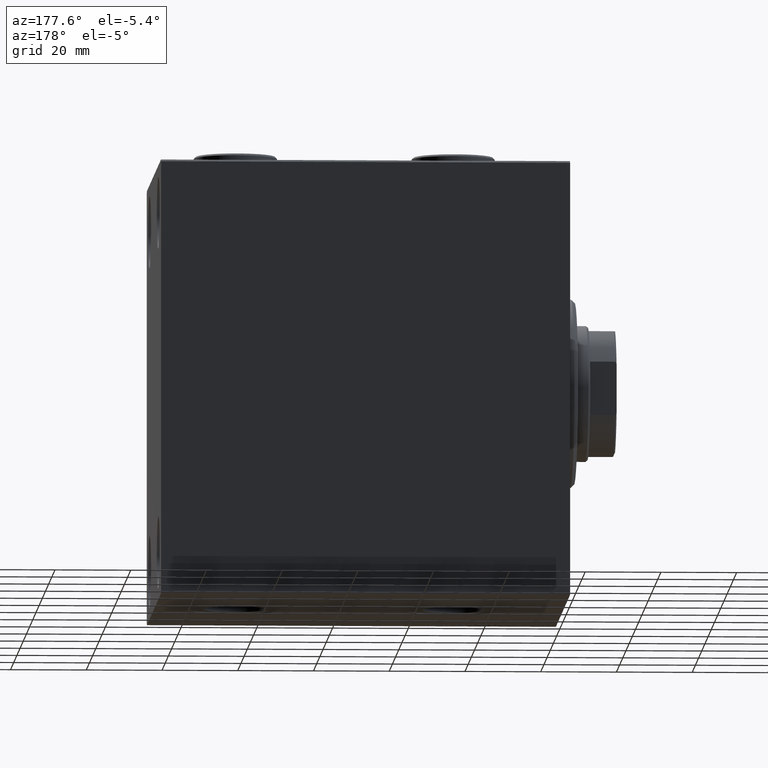
[diagram: clean part render]
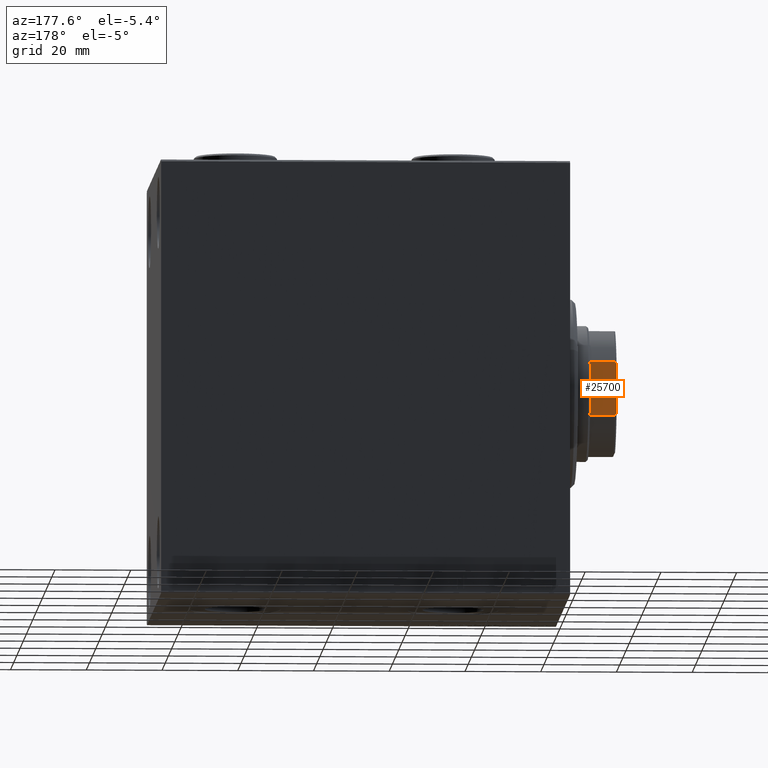
[diagram: same view with one face highlighted and labeled with its STEP entity id]
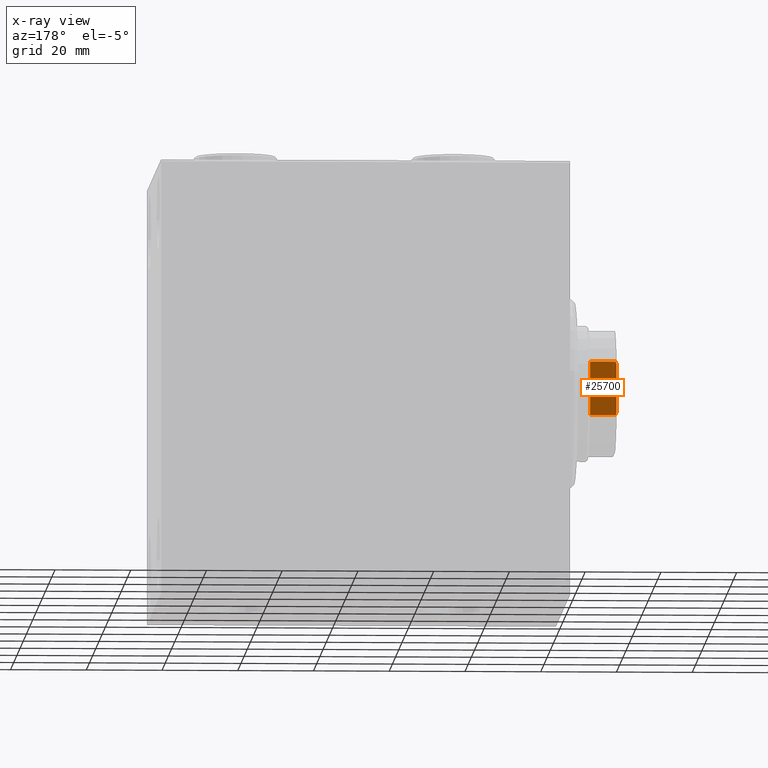
[diagram: x-ray of the same camera — body ghosted, the highlighted face saturated]
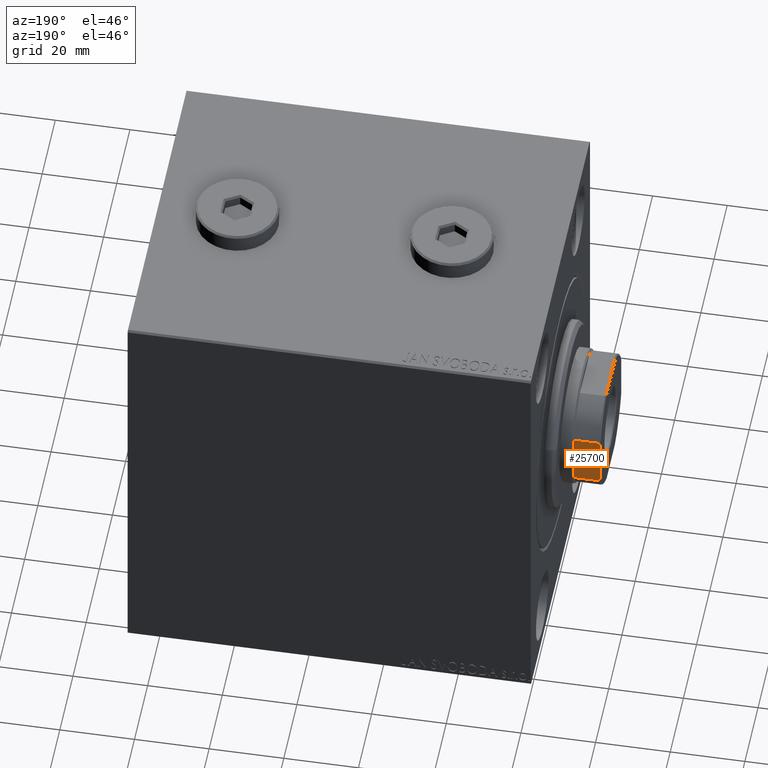
[diagram: same view with one face highlighted and labeled with its STEP entity id]
A machine part, auxiliary view. The second image highlights one B-rep face of the part: STEP entity #25700.
The next image is the same camera in x-ray: the body ghosted, the highlighted face saturated — about 0% of this face is hidden behind the body in this view.
A second angle (auxiliary view) of the same face is appended — the face is thin or edge-on in the first view.
In plain terms, the highlighted planar face has unit normal (0, -1, 0).
Its self-contained STEP definition (entity closure, byte-faithful):
#198 = VERTEX_POINT ( 'NONE', #41382 ) ;
#406 = VERTEX_POINT ( 'NONE', #35464 ) ;
#417 = CARTESIAN_POINT ( 'NONE',  ( -7.088723439378917135, 16.00000000000000000, 97.00000000000002842 ) ) ;
#428 = EDGE_CURVE ( 'NONE', #10973, #8627, #16122, .T. ) ;
#479 = DIRECTION ( 'NONE',  ( 0.000000000000000000, -1.000000000000000000, 0.000000000000000000 ) ) ;
#1130 = CARTESIAN_POINT ( 'NONE',  ( -6.311893535223715546, 16.00000000000000000, 104.0000000000000142 ) ) ;
#1370 = CARTESIAN_POINT ( 'NONE',  ( 7.088723439378914470, 16.00000000000000000, 103.7000000000000313 ) ) ;
#1575 = CARTESIAN_POINT ( 'NONE',  ( -6.572519770966229302, 16.00000000000000000, 103.9043578457852988 ) ) ;
#1952 = EDGE_CURVE ( 'NONE', #198, #8627, #22815, .T. ) ;
#3642 = ORIENTED_EDGE ( 'NONE', *, *, #1952, .T. ) ;
#4144 = CARTESIAN_POINT ( 'NONE',  ( -16.00000000000000000, 16.00000000000000000, 104.0000000000000142 ) ) ;
#4205 = ORIENTED_EDGE ( 'NONE', *, *, #24020, .F. ) ;
#5403 = ORIENTED_EDGE ( 'NONE', *, *, #428, .F. ) ;
#5447 = CARTESIAN_POINT ( 'NONE',  ( -6.311893535223715546, 16.00000000000000000, 104.0000000000000142 ) ) ;
#5471 = CARTESIAN_POINT ( 'NONE',  ( 6.311893535223850549, 16.00000000000000000, 104.0000000000000142 ) ) ;
#5602 = AXIS2_PLACEMENT_3D ( 'NONE', #4144, #479, #24252 ) ;
#5671 = CARTESIAN_POINT ( 'NONE',  ( 7.088723439378916247, 16.00000000000000355, 97.00000000000002842 ) ) ;
#6887 = LINE ( 'NONE', #10537, #31172 ) ;
#7327 = VECTOR ( 'NONE', #9046, 1000.000000000000000 ) ;
#8627 = VERTEX_POINT ( 'NONE', #27269 ) ;
#9046 = DIRECTION ( 'NONE',  ( -0.000000000000000000, -0.000000000000000000, 1.000000000000000000 ) ) ;
#10537 = CARTESIAN_POINT ( 'NONE',  ( -7.088723439378916247, 16.00000000000000000, -0.001000000000001000089 ) ) ;
#10889 = EDGE_CURVE ( 'NONE', #406, #41762, #39834, .T. ) ;
#10973 = VERTEX_POINT ( 'NONE', #5671 ) ;
#11237 = FACE_OUTER_BOUND ( 'NONE', #13077, .T. ) ;
#12311 = CARTESIAN_POINT ( 'NONE',  ( -7.088723439378916247, 16.00000000000000000, 103.6999999999999886 ) ) ;
#13077 = EDGE_LOOP ( 'NONE', ( #4205, #3642, #5403, #43466, #38001, #20495 ) ) ;
#14579 = DIRECTION ( 'NONE',  ( -1.000000000000000000, -0.000000000000000000, -0.000000000000000000 ) ) ;
#16122 = LINE ( 'NONE', #19314, #7327 ) ;
#18555 = VERTEX_POINT ( 'NONE', #417 ) ;
#19314 = CARTESIAN_POINT ( 'NONE',  ( 7.088723439378914470, 16.00000000000000000, -0.001000000000001000089 ) ) ;
#20495 = ORIENTED_EDGE ( 'NONE', *, *, #10889, .T. ) ;
#20807 = DIRECTION ( 'NONE',  ( -0.000000000000000000, -0.000000000000000000, 1.000000000000000000 ) ) ;
#22815 = B_SPLINE_CURVE_WITH_KNOTS ( 'NONE', 3,
 ( #5471, #39795, #29049, #1370 ),
 .UNSPECIFIED., .F., .F.,
 ( 4, 4 ),
 ( 8.673617379884035472E-19, 0.0008327452791757846730 ),
 .UNSPECIFIED. ) ;
#22822 = CARTESIAN_POINT ( 'NONE',  ( -6.831413176973244461, 16.00000000000000000, 103.8042286450461376 ) ) ;
#24020 = EDGE_CURVE ( 'NONE', #198, #41762, #34956, .T. ) ;
#24034 = CARTESIAN_POINT ( 'NONE',  ( -16.00000000000000000, 16.00000000000000000, 97.00000000000000000 ) ) ;
#24252 = DIRECTION ( 'NONE',  ( 0.000000000000000000, -0.000000000000000000, -1.000000000000000000 ) ) ;
#25184 = PLANE ( 'NONE',  #5602 ) ;
#25700 = ADVANCED_FACE ( 'NONE', ( #11237 ), #25184, .F. ) ;
#25805 = EDGE_CURVE ( 'NONE', #18555, #406, #6887, .T. ) ;
#27269 = CARTESIAN_POINT ( 'NONE',  ( 7.088723439378914470, 16.00000000000000000, 103.7000000000000313 ) ) ;
#28079 = CARTESIAN_POINT ( 'NONE',  ( -16.00000000000000000, 16.00000000000000000, 104.0000000000000142 ) ) ;
#28508 = EDGE_CURVE ( 'NONE', #10973, #18555, #31150, .T. ) ;
#29049 = CARTESIAN_POINT ( 'NONE',  ( 6.831413176973289758, 16.00000000000000000, 103.8042286450461660 ) ) ;
#30516 = VECTOR ( 'NONE', #14579, 1000.000000000000000 ) ;
#31150 = LINE ( 'NONE', #24034, #42216 ) ;
#31172 = VECTOR ( 'NONE', #20807, 1000.000000000000000 ) ;
#34956 = LINE ( 'NONE', #28079, #30516 ) ;
#35464 = CARTESIAN_POINT ( 'NONE',  ( -7.088723439378916247, 16.00000000000000000, 103.6999999999999886 ) ) ;
#38001 = ORIENTED_EDGE ( 'NONE', *, *, #25805, .T. ) ;
#39795 = CARTESIAN_POINT ( 'NONE',  ( 6.572519770966314567, 16.00000000000000000, 103.9043578457853130 ) ) ;
#39834 = B_SPLINE_CURVE_WITH_KNOTS ( 'NONE', 3,
 ( #12311, #22822, #1575, #1130 ),
 .UNSPECIFIED., .F., .F.,
 ( 4, 4 ),
 ( 0.000000000000000000, 0.0008327452791759258361 ),
 .UNSPECIFIED. ) ;
#41382 = CARTESIAN_POINT ( 'NONE',  ( 6.311893535223850549, 16.00000000000000000, 104.0000000000000142 ) ) ;
#41762 = VERTEX_POINT ( 'NONE', #5447 ) ;
#42216 = VECTOR ( 'NONE', #45097, 1000.000000000000000 ) ;
#43466 = ORIENTED_EDGE ( 'NONE', *, *, #28508, .T. ) ;
#45097 = DIRECTION ( 'NONE',  ( -1.000000000000000000, -0.000000000000000000, -0.000000000000000000 ) ) ;